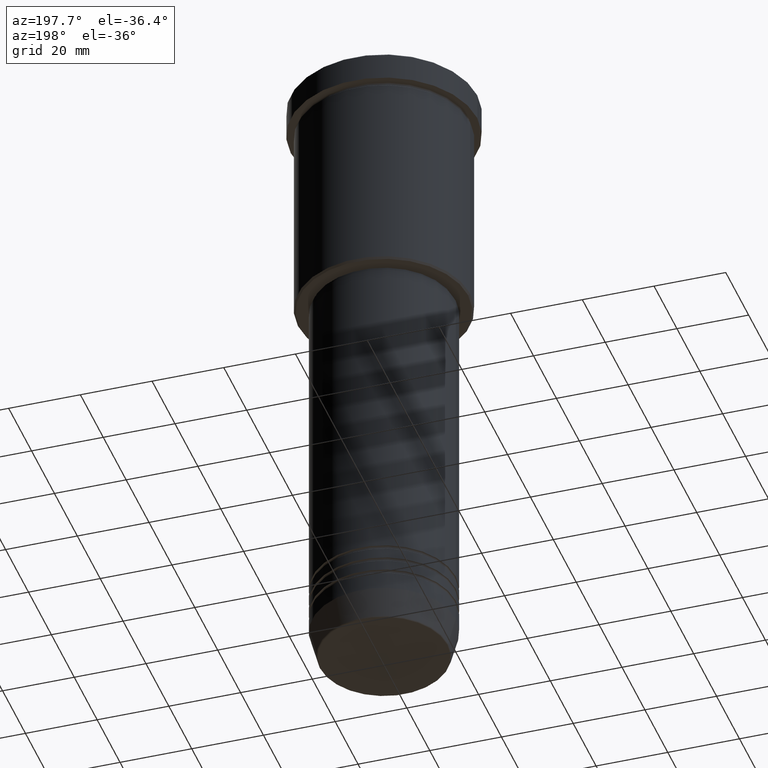
[diagram: clean part render]
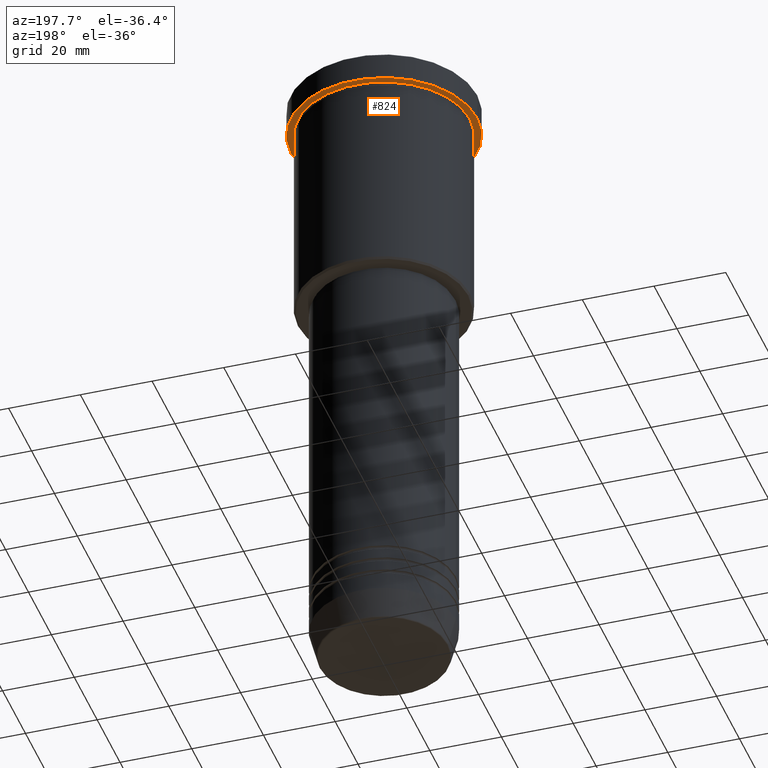
[diagram: same view with one face highlighted and labeled with its STEP entity id]
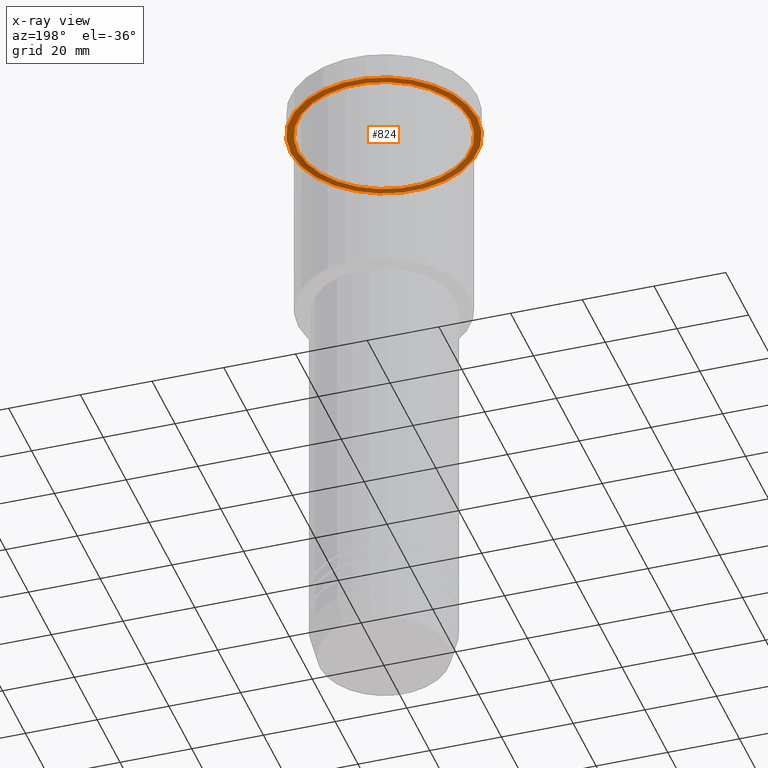
[diagram: x-ray of the same camera — body ghosted, the highlighted face saturated]
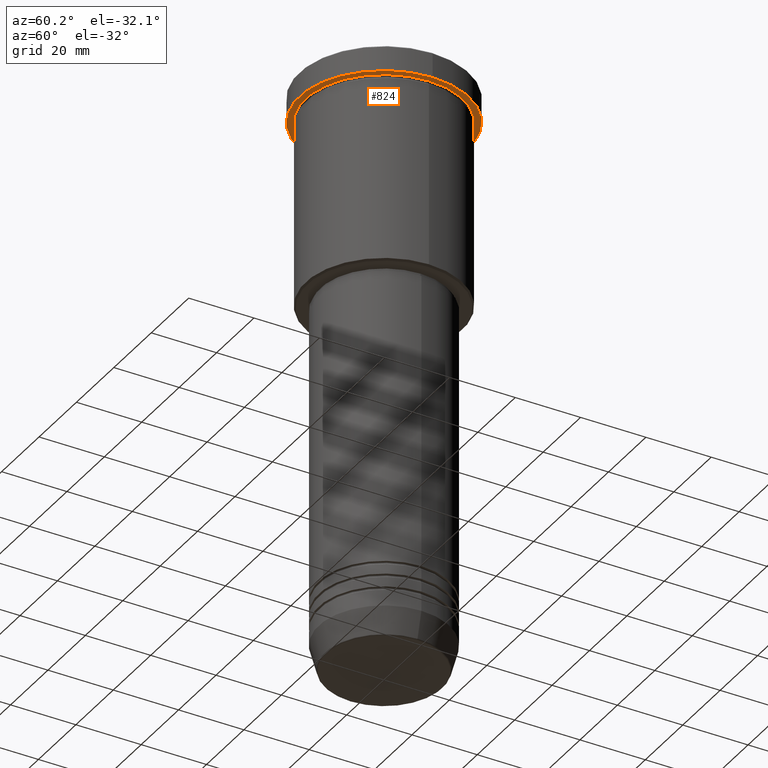
[diagram: same view with one face highlighted and labeled with its STEP entity id]
A machine part, auxiliary view. The second image highlights one B-rep face of the part: STEP entity #824.
The next image is the same camera in x-ray: the body ghosted, the highlighted face saturated — about 38% of this face is hidden behind the body in this view.
A second angle (auxiliary view) of the same face is appended — the face is thin or edge-on in the first view.
In plain terms, the highlighted planar face has unit normal (0, 0, -1).
Its self-contained STEP definition (entity closure, byte-faithful):
#15 = ORIENTED_EDGE ( 'NONE', *, *, #936, .T. ) ;
#24 = AXIS2_PLACEMENT_3D ( 'NONE', #1178, #695, #707 ) ;
#113 = AXIS2_PLACEMENT_3D ( 'NONE', #1055, #122, #388 ) ;
#122 = DIRECTION ( 'NONE',  ( -0.000000000000000000, -0.000000000000000000, 1.000000000000000000 ) ) ;
#126 = VERTEX_POINT ( 'NONE', #1148 ) ;
#143 = EDGE_CURVE ( 'NONE', #276, #559, #988, .T. ) ;
#166 = EDGE_CURVE ( 'NONE', #559, #276, #736, .T. ) ;
#196 = CARTESIAN_POINT ( 'NONE',  ( 26.00000000000000000, 0.000000000000000000, -7.999999999999992895 ) ) ;
#263 = FACE_BOUND ( 'NONE', #831, .T. ) ;
#269 = PLANE ( 'NONE',  #486 ) ;
#276 = VERTEX_POINT ( 'NONE', #196 ) ;
#278 = AXIS2_PLACEMENT_3D ( 'NONE', #1058, #960, #855 ) ;
#280 = CIRCLE ( 'NONE', #24, 24.00000000000000000 ) ;
#299 = CARTESIAN_POINT ( 'NONE',  ( 0.000000000000000000, 0.000000000000000000, -7.999999999999992895 ) ) ;
#336 = AXIS2_PLACEMENT_3D ( 'NONE', #299, #670, #390 ) ;
#388 = DIRECTION ( 'NONE',  ( -1.000000000000000000, 0.000000000000000000, 0.000000000000000000 ) ) ;
#390 = DIRECTION ( 'NONE',  ( 1.000000000000000000, 0.000000000000000000, 0.000000000000000000 ) ) ;
#486 = AXIS2_PLACEMENT_3D ( 'NONE', #1027, #746, #721 ) ;
#559 = VERTEX_POINT ( 'NONE', #922 ) ;
#628 = CIRCLE ( 'NONE', #113, 24.00000000000000000 ) ;
#670 = DIRECTION ( 'NONE',  ( -0.000000000000000000, -0.000000000000000000, 1.000000000000000000 ) ) ;
#695 = DIRECTION ( 'NONE',  ( -0.000000000000000000, -0.000000000000000000, 1.000000000000000000 ) ) ;
#700 = EDGE_CURVE ( 'NONE', #1157, #126, #280, .T. ) ;
#707 = DIRECTION ( 'NONE',  ( -1.000000000000000000, 0.000000000000000000, 0.000000000000000000 ) ) ;
#715 = EDGE_LOOP ( 'NONE', ( #959, #832 ) ) ;
#721 = DIRECTION ( 'NONE',  ( -1.000000000000000000, 0.000000000000000000, -0.000000000000000000 ) ) ;
#736 = CIRCLE ( 'NONE', #278, 26.00000000000000000 ) ;
#746 = DIRECTION ( 'NONE',  ( 0.000000000000000000, 0.000000000000000000, -1.000000000000000000 ) ) ;
#824 = ADVANCED_FACE ( 'NONE', ( #263, #928 ), #269, .T. ) ;
#831 = EDGE_LOOP ( 'NONE', ( #15, #1097 ) ) ;
#832 = ORIENTED_EDGE ( 'NONE', *, *, #166, .F. ) ;
#855 = DIRECTION ( 'NONE',  ( 1.000000000000000000, 0.000000000000000000, 0.000000000000000000 ) ) ;
#922 = CARTESIAN_POINT ( 'NONE',  ( -26.00000000000000000, 3.184081677783118191E-15, -7.999999999999992895 ) ) ;
#928 = FACE_OUTER_BOUND ( 'NONE', #715, .T. ) ;
#936 = EDGE_CURVE ( 'NONE', #126, #1157, #628, .T. ) ;
#959 = ORIENTED_EDGE ( 'NONE', *, *, #143, .F. ) ;
#960 = DIRECTION ( 'NONE',  ( -0.000000000000000000, -0.000000000000000000, 1.000000000000000000 ) ) ;
#988 = CIRCLE ( 'NONE', #336, 26.00000000000000000 ) ;
#1027 = CARTESIAN_POINT ( 'NONE',  ( 0.000000000000000000, 26.00000000000000000, -7.999999999999992895 ) ) ;
#1055 = CARTESIAN_POINT ( 'NONE',  ( 0.000000000000000000, 0.000000000000000000, -7.999999999999992895 ) ) ;
#1058 = CARTESIAN_POINT ( 'NONE',  ( 0.000000000000000000, 0.000000000000000000, -7.999999999999992895 ) ) ;
#1097 = ORIENTED_EDGE ( 'NONE', *, *, #700, .T. ) ;
#1148 = CARTESIAN_POINT ( 'NONE',  ( -24.00000000000000000, 0.000000000000000000, -7.999999999999992895 ) ) ;
#1157 = VERTEX_POINT ( 'NONE', #1180 ) ;
#1178 = CARTESIAN_POINT ( 'NONE',  ( 0.000000000000000000, 0.000000000000000000, -7.999999999999992895 ) ) ;
#1180 = CARTESIAN_POINT ( 'NONE',  ( 24.00000000000000000, 2.939152317953647894E-15, -7.999999999999992895 ) ) ;